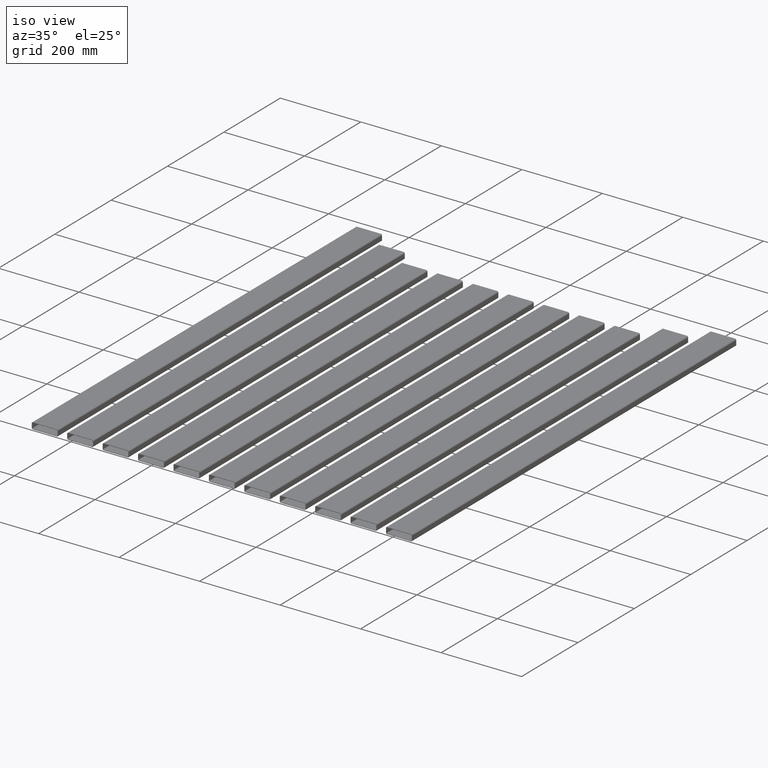
[diagram: clean part render]
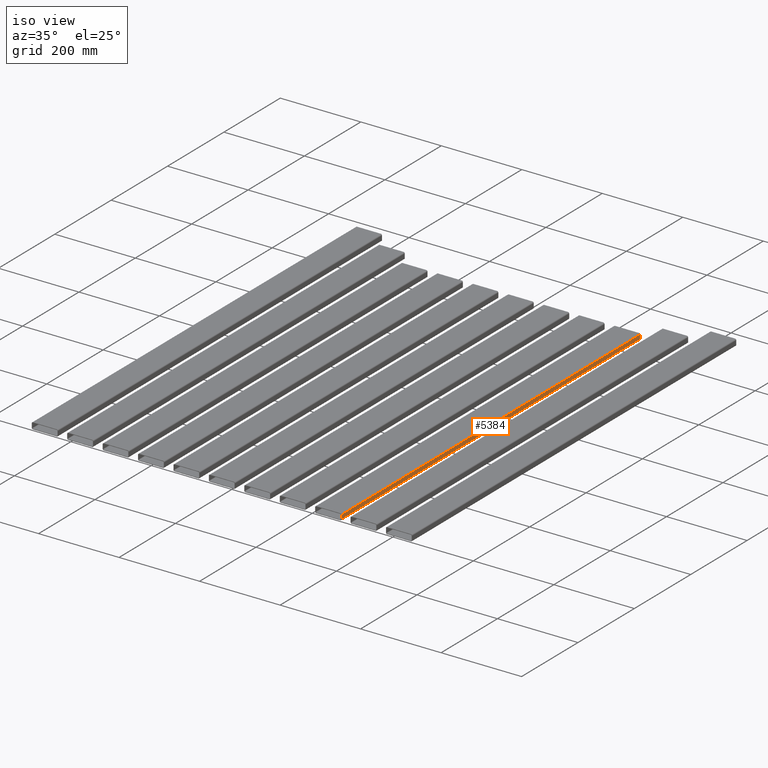
[diagram: same view with one face highlighted and labeled with its STEP entity id]
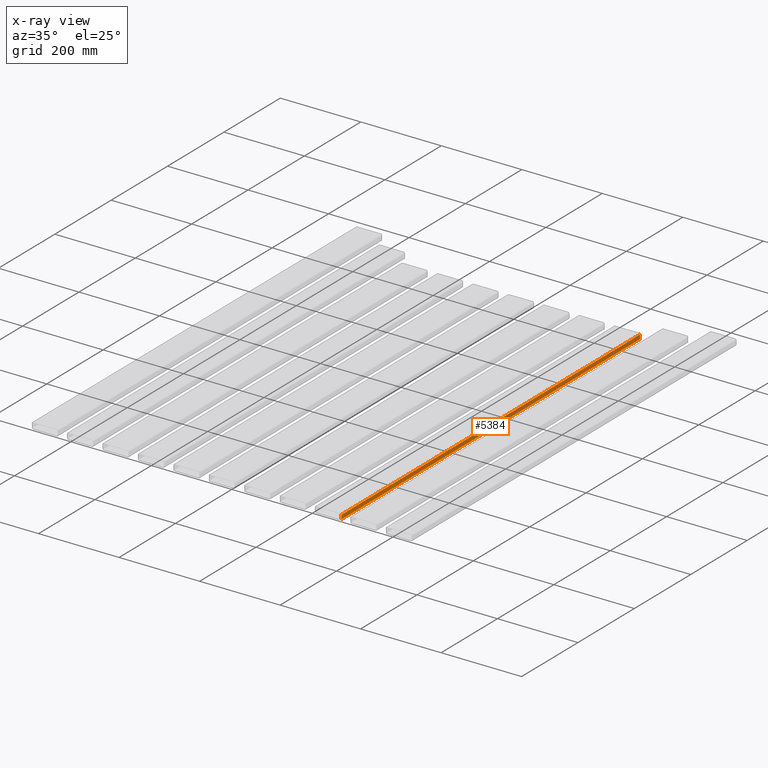
[diagram: x-ray of the same camera — body ghosted, the highlighted face saturated]
A machine part, iso view. The second image highlights one B-rep face of the part: STEP entity #5384.
The next image is the same camera in x-ray: the body ghosted, the highlighted face saturated — about 0% of this face is hidden behind the body in this view.
In plain terms, the highlighted planar face has unit normal (1, 0, 0).
Its self-contained STEP definition (entity closure, byte-faithful):
#46 = AXIS2_PLACEMENT_3D ( 'NONE', #3892, #2903, #3834 ) ;
#52 = CARTESIAN_POINT ( 'NONE',  ( 296.4999999999998863, -634.9999999999998863, 5.000000000000125233 ) ) ;
#360 = VECTOR ( 'NONE', #1695, 1000.000000000000000 ) ;
#373 = CARTESIAN_POINT ( 'NONE',  ( 296.4999999999997726, 425.0000000000001705, 5.000000000000125233 ) ) ;
#486 = ORIENTED_EDGE ( 'NONE', *, *, #5700, .T. ) ;
#632 = CARTESIAN_POINT ( 'NONE',  ( 296.4999999999997726, 425.0000000000001705, 5.000000000000125233 ) ) ;
#662 = DIRECTION ( 'NONE',  ( -9.654113257610057838E-17, 1.000000000000000000, 0.000000000000000000 ) ) ;
#725 = CARTESIAN_POINT ( 'NONE',  ( 296.4999999999999432, -634.9999999999998863, -4.999999999999893419 ) ) ;
#927 = FACE_OUTER_BOUND ( 'NONE', #2072, .T. ) ;
#958 = ORIENTED_EDGE ( 'NONE', *, *, #1458, .F. ) ;
#1191 = DIRECTION ( 'NONE',  ( 5.551115123125778758E-15, 0.000000000000000000, -1.000000000000000000 ) ) ;
#1308 = CARTESIAN_POINT ( 'NONE',  ( 296.4999999999998863, -634.9999999999998863, 5.000000000000125233 ) ) ;
#1384 = VECTOR ( 'NONE', #5057, 1000.000000000000000 ) ;
#1458 = EDGE_CURVE ( 'NONE', #4924, #4347, #5583, .T. ) ;
#1695 = DIRECTION ( 'NONE',  ( -9.654113257610057838E-17, 1.000000000000000000, 0.000000000000000000 ) ) ;
#1754 = LINE ( 'NONE', #1308, #1384 ) ;
#1794 = CARTESIAN_POINT ( 'NONE',  ( 296.4999999999999432, -634.9999999999998863, -4.999999999999893419 ) ) ;
#2072 = EDGE_LOOP ( 'NONE', ( #958, #2383, #486, #5426 ) ) ;
#2154 = VECTOR ( 'NONE', #1191, 1000.000000000000000 ) ;
#2383 = ORIENTED_EDGE ( 'NONE', *, *, #3868, .F. ) ;
#2701 = VERTEX_POINT ( 'NONE', #52 ) ;
#2903 = DIRECTION ( 'NONE',  ( 1.000000000000000000, 9.654113257610059070E-17, 5.551115123125778758E-15 ) ) ;
#3023 = LINE ( 'NONE', #4968, #4015 ) ;
#3288 = LINE ( 'NONE', #725, #360 ) ;
#3728 = VERTEX_POINT ( 'NONE', #1794 ) ;
#3834 = DIRECTION ( 'NONE',  ( 5.551115123125778758E-15, 0.000000000000000000, -1.000000000000000000 ) ) ;
#3868 = EDGE_CURVE ( 'NONE', #2701, #4924, #3023, .T. ) ;
#3892 = CARTESIAN_POINT ( 'NONE',  ( 296.4999999999998863, -634.9999999999998863, 5.000000000000125233 ) ) ;
#3923 = PLANE ( 'NONE',  #46 ) ;
#4015 = VECTOR ( 'NONE', #662, 1000.000000000000000 ) ;
#4347 = VERTEX_POINT ( 'NONE', #5503 ) ;
#4924 = VERTEX_POINT ( 'NONE', #373 ) ;
#4968 = CARTESIAN_POINT ( 'NONE',  ( 296.4999999999998863, -634.9999999999998863, 5.000000000000125233 ) ) ;
#5057 = DIRECTION ( 'NONE',  ( 5.551115123125778758E-15, 0.000000000000000000, -1.000000000000000000 ) ) ;
#5198 = EDGE_CURVE ( 'NONE', #3728, #4347, #3288, .T. ) ;
#5384 = ADVANCED_FACE ( 'NONE', ( #927 ), #3923, .T. ) ;
#5426 = ORIENTED_EDGE ( 'NONE', *, *, #5198, .T. ) ;
#5503 = CARTESIAN_POINT ( 'NONE',  ( 296.4999999999998295, 425.0000000000001705, -4.999999999999892530 ) ) ;
#5583 = LINE ( 'NONE', #632, #2154 ) ;
#5700 = EDGE_CURVE ( 'NONE', #2701, #3728, #1754, .T. ) ;